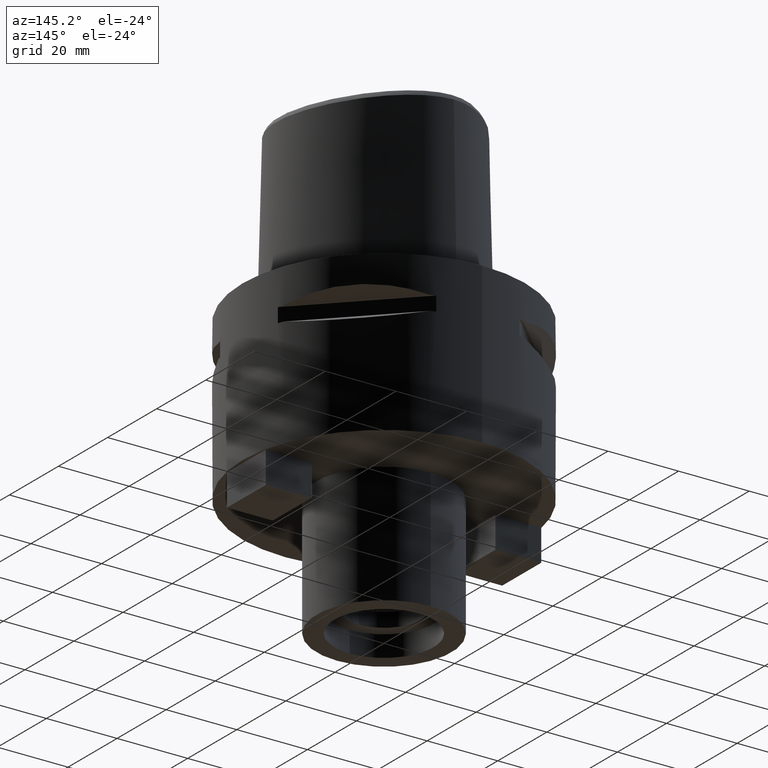
[diagram: clean part render]
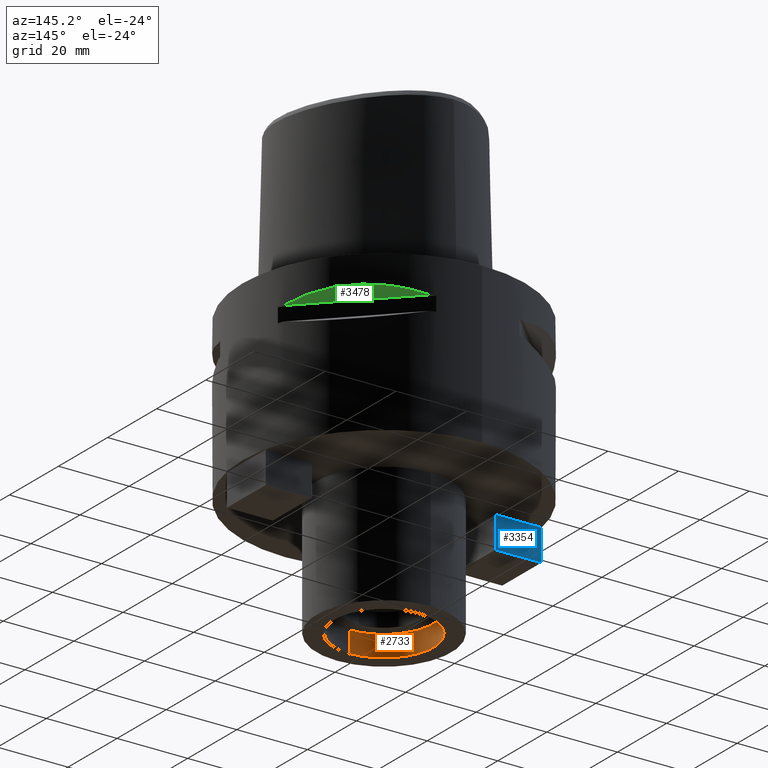
[diagram: same view with three faces highlighted in distinct colors, each labeled with its STEP entity id]
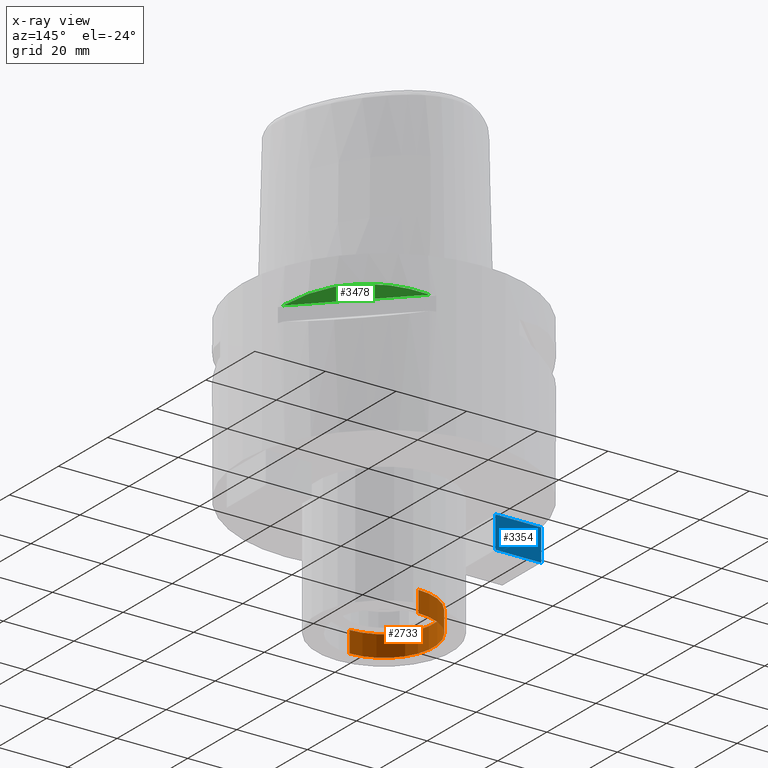
[diagram: x-ray of the same camera — body ghosted, the three highlighted faces saturated]
A machine part, auxiliary view with three faces highlighted in distinct colors.
The next image is the same camera in x-ray (body ghosted, the three faces saturated) — at least one of them is partly hidden behind the body in this view.
Their STEP definitions:

[orange] entity #2733 — the highlighted cylindrical surface (partial cylindrical patch) has radius 14 mm, axis along (0, 0, -1).
#607=CARTESIAN_POINT('',(0.E0,1.273020347714E-14,-7.9E1));
#608=DIRECTION('',(0.E0,0.E0,-1.E0));
#609=DIRECTION('',(0.E0,-1.E0,0.E0));
#610=AXIS2_PLACEMENT_3D('',#607,#608,#609);
#623=DIRECTION('',(0.E0,0.E0,1.E0));
#624=VECTOR('',#623,6.E0);
#625=CARTESIAN_POINT('',(0.E0,-1.4E1,-7.9E1));
#626=LINE('',#625,#624);
#630=DIRECTION('',(0.E0,0.E0,1.E0));
#631=VECTOR('',#630,6.E0);
#632=CARTESIAN_POINT('',(0.E0,1.4E1,-7.9E1));
#633=LINE('',#632,#631);
#645=CARTESIAN_POINT('',(0.E0,1.273020347714E-14,-7.3E1));
#646=DIRECTION('',(0.E0,0.E0,1.E0));
#647=DIRECTION('',(0.E0,1.E0,0.E0));
#648=AXIS2_PLACEMENT_3D('',#645,#646,#647);
#1705=CARTESIAN_POINT('',(0.E0,-1.4E1,-7.9E1));
#1706=CARTESIAN_POINT('',(0.E0,1.4E1,-7.9E1));
#1707=VERTEX_POINT('',#1705);
#1708=VERTEX_POINT('',#1706);
#1709=CARTESIAN_POINT('',(0.E0,1.4E1,-7.3E1));
#1710=VERTEX_POINT('',#1709);
#1711=CARTESIAN_POINT('',(0.E0,-1.4E1,-7.3E1));
#1712=VERTEX_POINT('',#1711);
#2719=CARTESIAN_POINT('',(0.E0,1.273020347714E-14,3.95E0));
#2720=DIRECTION('',(0.E0,0.E0,-1.E0));
#2721=DIRECTION('',(0.E0,-1.E0,0.E0));
#2722=AXIS2_PLACEMENT_3D('',#2719,#2720,#2721);
#2723=CYLINDRICAL_SURFACE('',#2722,1.4E1);
#2725=ORIENTED_EDGE('',*,*,#2724,.F.);
#2726=ORIENTED_EDGE('',*,*,#2712,.F.);
#2728=ORIENTED_EDGE('',*,*,#2727,.T.);
#2730=ORIENTED_EDGE('',*,*,#2729,.F.);
#2731=EDGE_LOOP('',(#2725,#2726,#2728,#2730));
#2732=FACE_OUTER_BOUND('',#2731,.F.);
#611=CIRCLE('',#610,1.4E1);
#649=CIRCLE('',#648,1.4E1);
#2712=EDGE_CURVE('',#1707,#1708,#611,.T.);
#2724=EDGE_CURVE('',#1708,#1710,#633,.T.);
#2727=EDGE_CURVE('',#1707,#1712,#626,.T.);
#2729=EDGE_CURVE('',#1710,#1712,#649,.T.);
#2733=ADVANCED_FACE('',(#2732),#2723,.F.);

[blue] entity #3354 — the highlighted planar face has unit normal (0, -1, 0).
#1245=DIRECTION('',(-1.E0,0.E0,0.E0));
#1246=VECTOR('',#1245,1.3E1);
#1247=CARTESIAN_POINT('',(-2.6E1,7.95E0,-4.5E1));
#1248=LINE('',#1247,#1246);
#1259=DIRECTION('',(0.E0,0.E0,1.E0));
#1260=VECTOR('',#1259,9.E0);
#1261=CARTESIAN_POINT('',(-3.9E1,7.95E0,-5.4E1));
#1262=LINE('',#1261,#1260);
#1294=DIRECTION('',(0.E0,0.E0,-1.E0));
#1295=VECTOR('',#1294,9.E0);
#1296=CARTESIAN_POINT('',(-2.6E1,7.95E0,-4.5E1));
#1297=LINE('',#1296,#1295);
#1301=DIRECTION('',(-1.E0,0.E0,0.E0));
#1302=VECTOR('',#1301,1.3E1);
#1303=CARTESIAN_POINT('',(-2.6E1,7.95E0,-5.4E1));
#1304=LINE('',#1303,#1302);
#1693=CARTESIAN_POINT('',(-2.6E1,7.95E0,-4.5E1));
#1694=CARTESIAN_POINT('',(-3.9E1,7.95E0,-4.5E1));
#1695=VERTEX_POINT('',#1693);
#1696=VERTEX_POINT('',#1694);
#1778=CARTESIAN_POINT('',(-3.9E1,7.95E0,-5.4E1));
#1779=VERTEX_POINT('',#1778);
#1780=CARTESIAN_POINT('',(-2.6E1,7.95E0,-5.4E1));
#1781=VERTEX_POINT('',#1780);
#3340=CARTESIAN_POINT('',(0.E0,7.95E0,0.E0));
#3341=DIRECTION('',(0.E0,-1.E0,0.E0));
#3342=DIRECTION('',(0.E0,0.E0,-1.E0));
#3343=AXIS2_PLACEMENT_3D('',#3340,#3341,#3342);
#3344=PLANE('',#3343);
#3345=ORIENTED_EDGE('',*,*,#2664,.T.);
#3347=ORIENTED_EDGE('',*,*,#3346,.F.);
#3349=ORIENTED_EDGE('',*,*,#3348,.F.);
#3351=ORIENTED_EDGE('',*,*,#3350,.F.);
#3352=EDGE_LOOP('',(#3345,#3347,#3349,#3351));
#3353=FACE_OUTER_BOUND('',#3352,.F.);
#2664=EDGE_CURVE('',#1695,#1696,#1248,.T.);
#3346=EDGE_CURVE('',#1779,#1696,#1262,.T.);
#3348=EDGE_CURVE('',#1781,#1779,#1304,.T.);
#3350=EDGE_CURVE('',#1695,#1781,#1297,.T.);
#3354=ADVANCED_FACE('',(#3353),#3344,.F.);

[green] entity #3478 — the highlighted planar face has unit normal (-0.3536, -0.3536, 0.866).
#1386=CARTESIAN_POINT('',(3.774622163927E1,1.323717311056E1,-9.950000000002E0));
#1387=CARTESIAN_POINT('',(3.668564587161E1,1.626143876435E1,-9.148326960991E0));
#1388=CARTESIAN_POINT('',(3.397359084062E1,2.171906657626E1,-8.027451566833E0));
#1389=CARTESIAN_POINT('',(2.850324251697E1,2.850324251697E1,-7.491083688204E0));
#1390=CARTESIAN_POINT('',(2.171906657626E1,3.397359084062E1,-8.027451566833E0));
#1391=CARTESIAN_POINT('',(1.626143876435E1,3.668564587161E1,-9.148326960991E0));
#1392=CARTESIAN_POINT('',(1.323717311056E1,3.774622163927E1,-9.950000000002E0));
#1413=DIRECTION('',(-7.071067811865E-1,7.071067811865E-1,0.E0));
#1414=VECTOR('',#1413,3.466102883017E1);
#1415=CARTESIAN_POINT('',(3.774622163927E1,1.323717311056E1,-9.950000000001E0));
#1416=LINE('',#1415,#1414);
#1668=VERTEX_POINT('',#1386);
#1669=VERTEX_POINT('',#1392);
#3468=CARTESIAN_POINT('',(1.166726188958E1,4.702260094891E1,-6.803847577293E0));
#3469=DIRECTION('',(-3.535533905933E-1,-3.535533905933E-1,8.660254037844E-1));
#3470=DIRECTION('',(-6.123724356958E-1,-6.123724356958E-1,-5.E-1));
#3471=AXIS2_PLACEMENT_3D('',#3468,#3469,#3470);
#3472=PLANE('',#3471);
#3473=ORIENTED_EDGE('',*,*,#2620,.T.);
#3475=ORIENTED_EDGE('',*,*,#3474,.F.);
#3476=EDGE_LOOP('',(#3473,#3475));
#3477=FACE_OUTER_BOUND('',#3476,.F.);
#1393=B_SPLINE_CURVE_WITH_KNOTS('',3,(#1386,#1387,#1388,#1389,#1390,#1391,
#1392),.UNSPECIFIED.,.F.,.F.,(4,1,1,1,4),(0.E0,2.5E-1,5.E-1,7.5E-1,1.E0),
.UNSPECIFIED.);
#2620=EDGE_CURVE('',#1668,#1669,#1393,.T.);
#3474=EDGE_CURVE('',#1668,#1669,#1416,.T.);
#3478=ADVANCED_FACE('',(#3477),#3472,.F.);